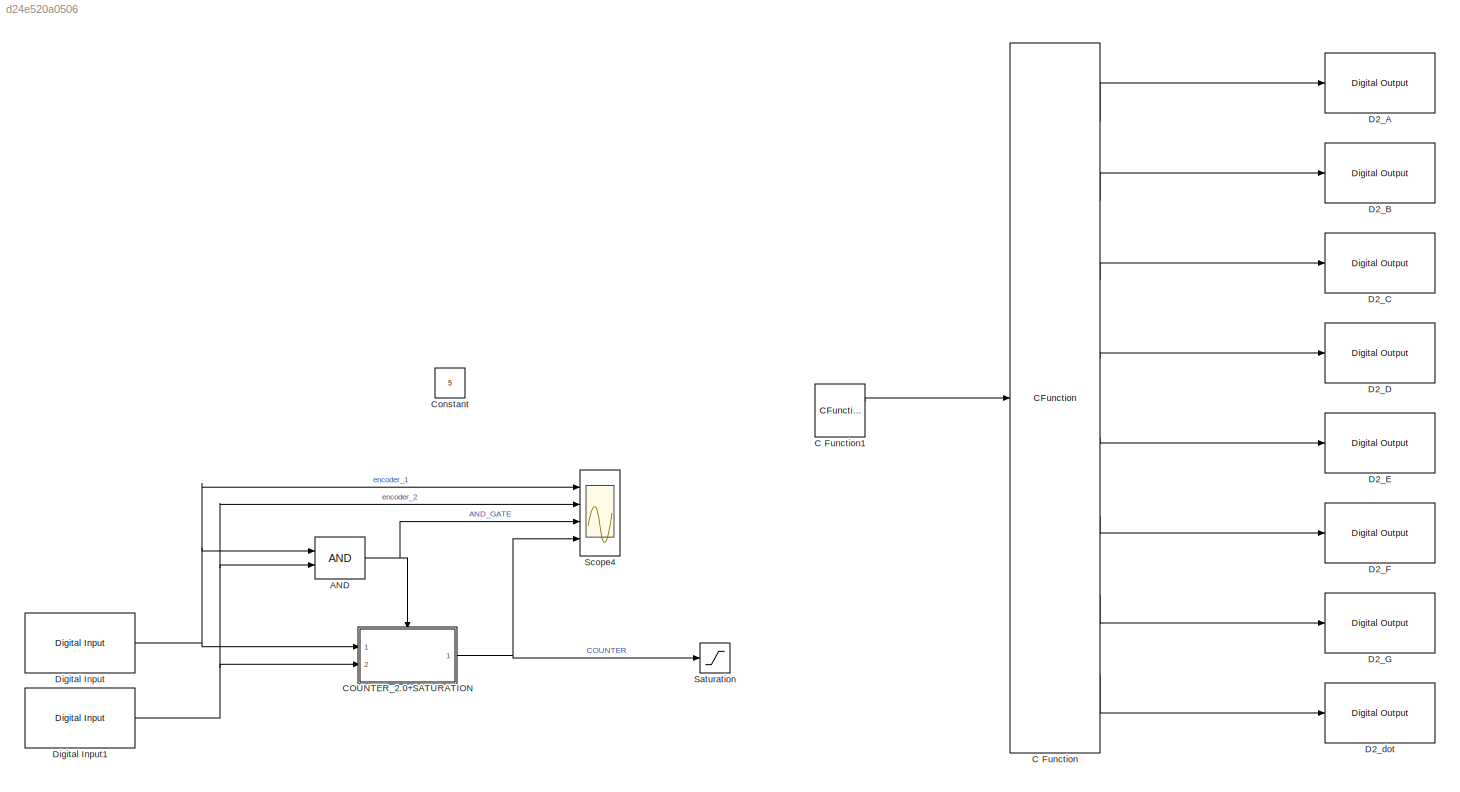
MODEL slx_d24e520a0506
KIND model
CONFIG AbsTol = auto
CONFIG EnableMultiTasking = on
CONFIG FixedStep = auto
CONFIG MaxStep = auto
CONFIG MinStep = auto
CONFIG RelTol = 1e-3
CONFIG SampleTimeConstraint = Unconstrained
CONFIG SolverName = FixedStepAuto
CONFIG StartTime = 0.0
CONFIG StopTime = Inf
BLOCK [Logic] AND
  AllPortsSameDT = off
  IconShape = distinctive
  OutDataTypeStr = boolean
  Ports = [2, 1]
BLOCK [CFunction] C Function
  OutputCode = int IN = (int)wej;\n\nswitch(IN)\n{\n\ncase 0:\nA=1;B=1;C=1;D=1;E=1;F=1;G=0;dot=1;\nbreak;\n\ncase 1:\nA=0;B=1;C=1;D=0;E=0;F=0;G=0;dot=1;\nbreak;\n\ncase 2:\nA=1;B=1;C=0;D=1;E=1;F=0;G=1;dot=1;\nbreak;\n\ncase 3:\nA=1;B=1;C=1;D=1;E=0;F=0;G=1;dot=1;\nbreak;\n\ncase 4:\nA=0;B=1;C=1;D=0;E=0;F=1;G=1;dot=1;\nbreak;\n\ncase 5:\nA=1;B=0;C=1;D=1;E=0;F=1;G=1;dot=1;\nbreak;\n\ncase 6:\nA=1;B=0;C=1;D=1;E=1;F=1;G=1;dot=1;\nbreak;\n\ncase 7:\nA...<+190ch>
  Ports = [1, 8]
BLOCK [CFunction] C Function1
  OutputCode = //double wyj = 0;\n//double wyj2 = 0;\n\nfor(;;){\n\nwyj = wyj+1;\n\nfor(double i=0; i<1000; i++){};\n\nif(wyj>9){\nwyj=0;\nwyj2=wyj2+1;\n}\n\n}
  Ports = [0, 2]
  i = 0
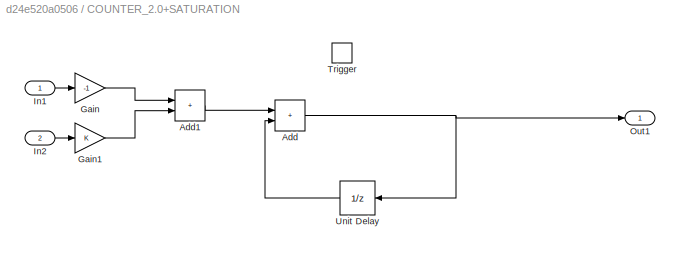
BLOCK [SubSystem] COUNTER_2.0+SATURATION
  Ports = [2, 1, 0, 1]
  RequestExecContextInheritance = off
BLOCK [Sum] COUNTER_2.0+SATURATION/Add
  IconShape = rectangular
  Ports = [2, 1]
BLOCK [Sum] COUNTER_2.0+SATURATION/Add1
  IconShape = rectangular
  Ports = [2, 1]
BLOCK [Gain] COUNTER_2.0+SATURATION/Gain
  Gain = -1
BLOCK [Gain] COUNTER_2.0+SATURATION/Gain1
BLOCK [Inport] COUNTER_2.0+SATURATION/In1
BLOCK [Inport] COUNTER_2.0+SATURATION/In2
  Port = 2
BLOCK [Outport] COUNTER_2.0+SATURATION/Out1
BLOCK [TriggerPort] COUNTER_2.0+SATURATION/Trigger
  PortDimensions = 1
  Ports = []
  StatesWhenEnabling = held
  TriggerType = falling
  VariantControl = (inherit)
BLOCK [UnitDelay] COUNTER_2.0+SATURATION/Unit Delay
  HasFrameUpgradeWarning = on
  NameLocation = top
  SampleTime = -1
BLOCK [Constant] Constant
  Value = 5
BLOCK [Reference] D2_A  REF=c2837xDlib/Digital Output
  Ports = [1]
  SourceBlock = c2837xDlib/Digital Output
  SourceProductBaseCode = TIC2000
  SourceType = F2837x GPIO Digital Output
  UserDataPersistent = on
BLOCK [Reference] D2_B  REF=c2837xDlib/Digital Output
  Ports = [1]
  SourceBlock = c2837xDlib/Digital Output
  SourceProductBaseCode = TIC2000
  SourceType = F2837x GPIO Digital Output
  UserDataPersistent = on
BLOCK [Reference] D2_C  REF=c2837xDlib/Digital Output
  Ports = [1]
  SourceBlock = c2837xDlib/Digital Output
  SourceProductBaseCode = TIC2000
  SourceType = F2837x GPIO Digital Output
  UserDataPersistent = on
BLOCK [Reference] D2_D  REF=c2837xDlib/Digital Output
  Ports = [1]
  SourceBlock = c2837xDlib/Digital Output
  SourceProductBaseCode = TIC2000
  SourceType = F2837x GPIO Digital Output
  UserDataPersistent = on
BLOCK [Reference] D2_E  REF=c2837xDlib/Digital Output
  Ports = [1]
  SourceBlock = c2837xDlib/Digital Output
  SourceProductBaseCode = TIC2000
  SourceType = F2837x GPIO Digital Output
  UserDataPersistent = on
BLOCK [Reference] D2_F  REF=c2837xDlib/Digital Output
  Ports = [1]
  SourceBlock = c2837xDlib/Digital Output
  SourceProductBaseCode = TIC2000
  SourceType = F2837x GPIO Digital Output
  UserDataPersistent = on
BLOCK [Reference] D2_G  REF=c2837xDlib/Digital Output
  Ports = [1]
  SourceBlock = c2837xDlib/Digital Output
  SourceProductBaseCode = TIC2000
  SourceType = F2837x GPIO Digital Output
  UserDataPersistent = on
BLOCK [Reference] D2_dot  REF=c2837xDlib/Digital Output
  Ports = [1]
  SourceBlock = c2837xDlib/Digital Output
  SourceProductBaseCode = TIC2000
  SourceType = F2837x GPIO Digital Output
  UserDataPersistent = on
BLOCK [Reference] Digital Input  REF=c2837xDlib/Digital Input
  Ports = [0, 1]
  SourceBlock = c2837xDlib/Digital Input
  SourceProductBaseCode = TIC2000
  SourceType = F2837x GPIO Digital Input
  UserDataPersistent = on
BLOCK [Reference] Digital Input1  REF=c2837xDlib/Digital Input
  Ports = [0, 1]
  SourceBlock = c2837xDlib/Digital Input
  SourceProductBaseCode = TIC2000
  SourceType = F2837x GPIO Digital Input
  UserDataPersistent = on
BLOCK [Saturate] Saturation
  LowerLimit = 0
  OutDataTypeStr = double
  UpperLimit = 9
BLOCK [Scope] Scope4
  Floating = off
  NumInputPorts = 4
  Ports = [4]
  ScopeSpecificationString = Simulink.scopes.TimeScopeBlockCfg('CurrentConfiguration', extmgr.ConfigurationSet(extmgr.Configuration('Core','General UI',true),extmgr.Configuration('Core','Source UI',true),extmgr.Configuration('Sources','WiredSimulink',true),extmgr.Configuration('Visuals','Time Domain',true,'SerializedDisplays',{struct('MinYLimReal','-0.125','MaxYLimReal','1.125','YLabelReal','','MinYLimMag','0.00000','MaxYLimM...<+3398ch>
NET AND:1 -> COUNTER_2.0+SATURATION:trigger, Scope4:3
LINE C Function1:1 -> C Function:1
LINE C Function:1 -> D2_A:1
LINE C Function:2 -> D2_B:1
LINE C Function:3 -> D2_C:1
LINE C Function:4 -> D2_D:1
LINE C Function:5 -> D2_E:1
LINE C Function:6 -> D2_F:1
LINE C Function:7 -> D2_G:1
LINE C Function:8 -> D2_dot:1
LINE COUNTER_2.0+SATURATION/Add1:1 -> COUNTER_2.0+SATURATION/Add:1
NET COUNTER_2.0+SATURATION/Add:1 -> COUNTER_2.0+SATURATION/Out1:1, COUNTER_2.0+SATURATION/Unit Delay:1
LINE COUNTER_2.0+SATURATION/Gain1:1 -> COUNTER_2.0+SATURATION/Add1:2
LINE COUNTER_2.0+SATURATION/Gain:1 -> COUNTER_2.0+SATURATION/Add1:1
LINE COUNTER_2.0+SATURATION/In1:1 -> COUNTER_2.0+SATURATION/Gain:1
LINE COUNTER_2.0+SATURATION/In2:1 -> COUNTER_2.0+SATURATION/Gain1:1
LINE COUNTER_2.0+SATURATION/Unit Delay:1 -> COUNTER_2.0+SATURATION/Add:2
NET COUNTER_2.0+SATURATION:1 -> Saturation:1, Scope4:4
NET Digital Input1:1 -> AND:2, COUNTER_2.0+SATURATION:2, Scope4:2
NET Digital Input:1 -> AND:1, COUNTER_2.0+SATURATION:1, Scope4:1
note: NET lines group one-source signal fan-out (src -> all destinations, sorted); 1:1 wires keep LINE
